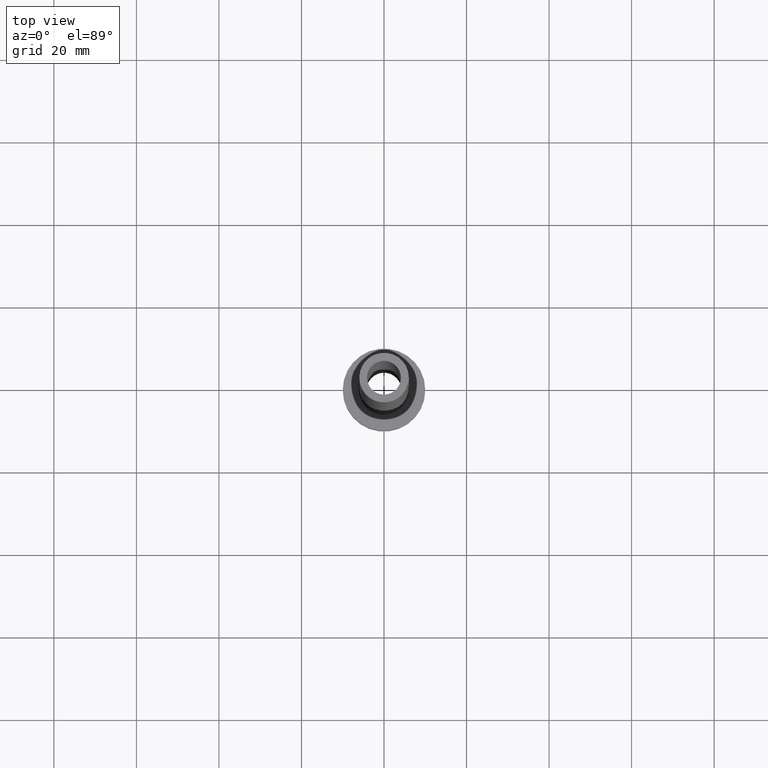
[diagram: clean part render]
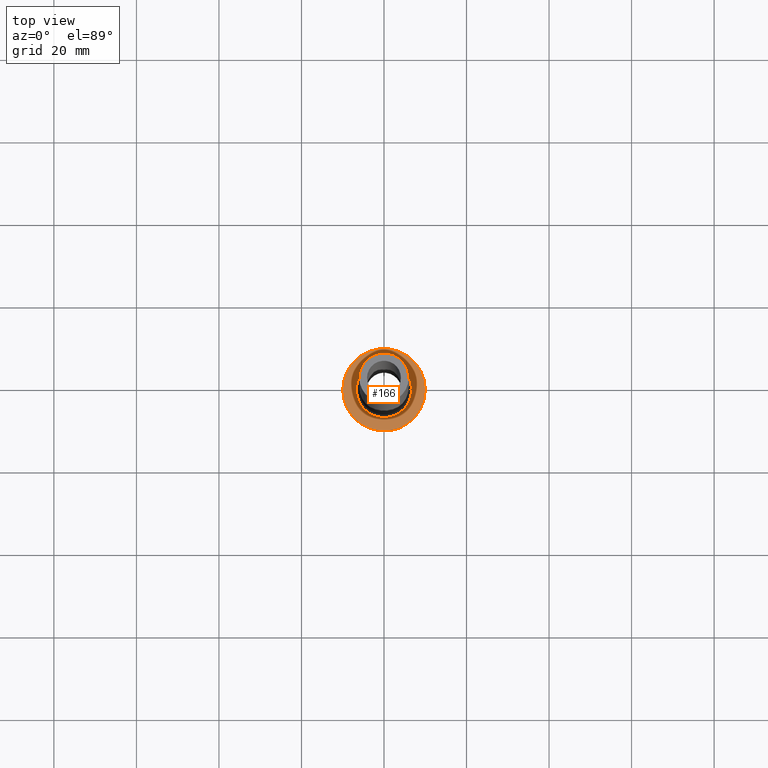
[diagram: same view with one face highlighted and labeled with its STEP entity id]
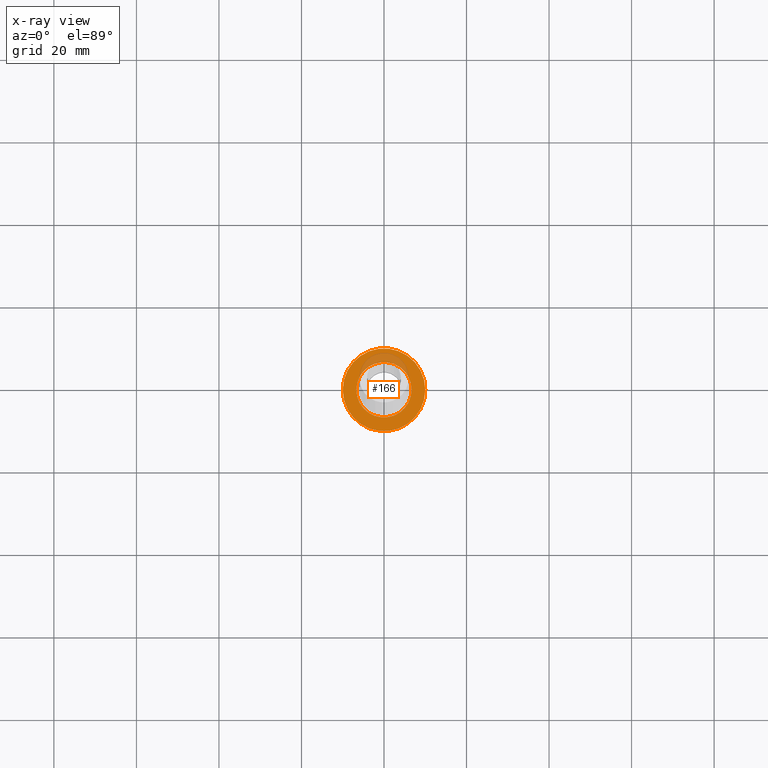
[diagram: x-ray of the same camera — body ghosted, the highlighted face saturated]
A machine part, top view. The second image highlights one B-rep face of the part: STEP entity #166.
The next image is the same camera in x-ray: the body ghosted, the highlighted face saturated — about 14% of this face is hidden behind the body in this view.
In plain terms, the highlighted planar face has unit normal (0, 0, 1).
Its self-contained STEP definition (entity closure, byte-faithful):
#20 = ORIENTED_EDGE ( 'NONE', *, *, #368, .T. ) ;
#21 = DIRECTION ( 'NONE',  ( 0.000000000000000000, 0.000000000000000000, 1.000000000000000000 ) ) ;
#45 = VERTEX_POINT ( 'NONE', #267 ) ;
#57 = ORIENTED_EDGE ( 'NONE', *, *, #234, .T. ) ;
#63 = DIRECTION ( 'NONE',  ( 1.000000000000000000, 0.000000000000000000, 0.000000000000000000 ) ) ;
#78 = DIRECTION ( 'NONE',  ( -0.000000000000000000, -0.000000000000000000, -1.000000000000000000 ) ) ;
#84 = CIRCLE ( 'NONE', #390, 10.00000000000000000 ) ;
#85 = PLANE ( 'NONE',  #297 ) ;
#120 = DIRECTION ( 'NONE',  ( 1.000000000000000000, 0.000000000000000000, 0.000000000000000000 ) ) ;
#123 = AXIS2_PLACEMENT_3D ( 'NONE', #399, #78, #218 ) ;
#149 = CIRCLE ( 'NONE', #428, 6.700000000000001066 ) ;
#150 = CIRCLE ( 'NONE', #123, 6.700000000000001066 ) ;
#151 = FACE_BOUND ( 'NONE', #307, .T. ) ;
#166 = ADVANCED_FACE ( 'NONE', ( #151, #214 ), #85, .T. ) ;
#201 = CARTESIAN_POINT ( 'NONE',  ( 6.700000000000001066, 0.000000000000000000, 7.000000000000006217 ) ) ;
#214 = FACE_OUTER_BOUND ( 'NONE', #402, .T. ) ;
#216 = CARTESIAN_POINT ( 'NONE',  ( 0.000000000000000000, 0.000000000000000000, 7.000000000000000000 ) ) ;
#218 = DIRECTION ( 'NONE',  ( 1.000000000000000000, 0.000000000000000000, 0.000000000000000000 ) ) ;
#221 = VERTEX_POINT ( 'NONE', #329 ) ;
#232 = CIRCLE ( 'NONE', #445, 10.00000000000000000 ) ;
#233 = DIRECTION ( 'NONE',  ( 0.000000000000000000, 0.000000000000000000, 1.000000000000000000 ) ) ;
#234 = EDGE_CURVE ( 'NONE', #446, #221, #149, .T. ) ;
#235 = CARTESIAN_POINT ( 'NONE',  ( 10.00000000000000000, 1.224646799147353256E-15, 7.000000000000000000 ) ) ;
#244 = EDGE_CURVE ( 'NONE', #268, #45, #84, .T. ) ;
#259 = CARTESIAN_POINT ( 'NONE',  ( 0.000000000000000000, 0.000000000000000000, 7.000000000000000000 ) ) ;
#261 = CARTESIAN_POINT ( 'NONE',  ( 0.000000000000000000, 0.000000000000000000, 7.000000000000000000 ) ) ;
#267 = CARTESIAN_POINT ( 'NONE',  ( -10.00000000000000000, 0.000000000000000000, 7.000000000000000000 ) ) ;
#268 = VERTEX_POINT ( 'NONE', #235 ) ;
#297 = AXIS2_PLACEMENT_3D ( 'NONE', #216, #21, #360 ) ;
#299 = ORIENTED_EDGE ( 'NONE', *, *, #407, .T. ) ;
#307 = EDGE_LOOP ( 'NONE', ( #57, #20 ) ) ;
#329 = CARTESIAN_POINT ( 'NONE',  ( -6.700000000000001066, 8.205133554287267548E-16, 7.000000000000006217 ) ) ;
#348 = CARTESIAN_POINT ( 'NONE',  ( 0.000000000000000000, 0.000000000000000000, 7.000000000000000000 ) ) ;
#360 = DIRECTION ( 'NONE',  ( 1.000000000000000000, 0.000000000000000000, -0.000000000000000000 ) ) ;
#368 = EDGE_CURVE ( 'NONE', #221, #446, #150, .T. ) ;
#390 = AXIS2_PLACEMENT_3D ( 'NONE', #261, #233, #410 ) ;
#399 = CARTESIAN_POINT ( 'NONE',  ( 0.000000000000000000, 0.000000000000000000, 7.000000000000000000 ) ) ;
#402 = EDGE_LOOP ( 'NONE', ( #299, #456 ) ) ;
#407 = EDGE_CURVE ( 'NONE', #45, #268, #232, .T. ) ;
#410 = DIRECTION ( 'NONE',  ( 1.000000000000000000, 0.000000000000000000, 0.000000000000000000 ) ) ;
#424 = DIRECTION ( 'NONE',  ( 0.000000000000000000, 0.000000000000000000, 1.000000000000000000 ) ) ;
#428 = AXIS2_PLACEMENT_3D ( 'NONE', #259, #442, #120 ) ;
#442 = DIRECTION ( 'NONE',  ( -0.000000000000000000, -0.000000000000000000, -1.000000000000000000 ) ) ;
#445 = AXIS2_PLACEMENT_3D ( 'NONE', #348, #424, #63 ) ;
#446 = VERTEX_POINT ( 'NONE', #201 ) ;
#456 = ORIENTED_EDGE ( 'NONE', *, *, #244, .T. ) ;